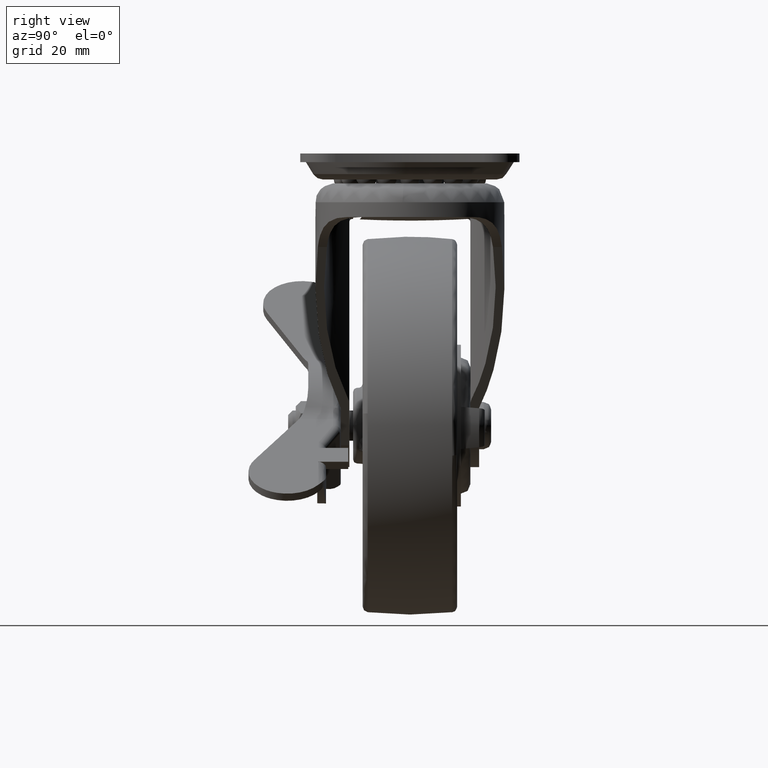
[diagram: clean part render]
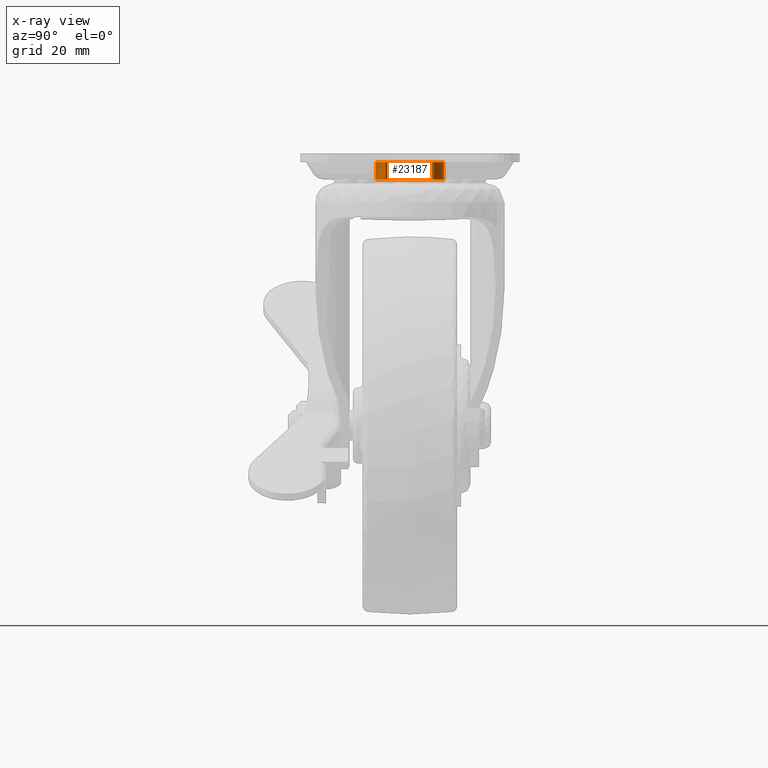
[diagram: x-ray — body ghosted, one internal face saturated and labeled with its STEP entity id]
A machine part, right view, then the same camera in x-ray: the body is ghosted and one INTERNAL B-rep face — a face not visible from any outside direction — is saturated and labeled: STEP entity #23187.
In plain terms, the highlighted face is a freeform B-spline surface patch.
Its self-contained STEP definition (entity closure, byte-faithful):
#23045=CARTESIAN_POINT('',(38.308183378698658,-6.419254042387632,69.814996974999914));
#23046=CARTESIAN_POINT('',(31.888929336311026,-12.727437421086286,69.814996974999929));
#23047=CARTESIAN_POINT('',(25.580745957612368,-6.308183378698655,69.814996974999914));
#23048=CARTESIAN_POINT('',(19.272562578913721,0.111070663688976,69.814996974999929));
#23049=CARTESIAN_POINT('',(25.691816621301349,6.419254042387632,69.814996974999914));
#23050=CARTESIAN_POINT('',(32.111070663688977,12.727437421086286,69.814996974999929));
#23051=CARTESIAN_POINT('',(38.419254042387642,6.308183378698655,69.814996974999914));
#23052=CARTESIAN_POINT('',(38.308183378698658,-6.419254042387632,64.982123025625000));
#23053=CARTESIAN_POINT('',(31.888929336311026,-12.727437421086286,64.982123025625000));
#23054=CARTESIAN_POINT('',(25.580745957612368,-6.308183378698655,64.982123025625000));
#23055=CARTESIAN_POINT('',(19.272562578913721,0.111070663688976,64.982123025625000));
#23056=CARTESIAN_POINT('',(25.691816621301349,6.419254042387632,64.982123025625000));
#23057=CARTESIAN_POINT('',(32.111070663688977,12.727437421086286,64.982123025625000));
#23058=CARTESIAN_POINT('',(38.419254042387642,6.308183378698655,64.982123025625000));
#23066=(BOUNDED_SURFACE()B_SPLINE_SURFACE(2,1,((#23045,#23052),(#23046,#23053),(#23047,#23054),(#23048,#23055),(#23049,#23056),(#23050,#23057),(#23051,#23058)),.UNSPECIFIED.,.F.,.F.,.U.)B_SPLINE_SURFACE_WITH_KNOTS((3,2,2,3),(2,2),(0.0,14.911688245431421,29.823376490862849,44.735064736294269),(0.0,4.832873949374919),.UNSPECIFIED.)GEOMETRIC_REPRESENTATION_ITEM()RATIONAL_B_SPLINE_SURFACE(((1.0,1.0),(0.707106781186548,0.707106781186548),(1.0,1.0),(0.707106781186548,0.707106781186548),(1.0,1.0),(0.707106781186548,0.707106781186548),(1.0,1.0)))REPRESENTATION_ITEM('')SURFACE());
#23067=CARTESIAN_POINT('',(38.308182696771041,-6.419253527868385,69.699997000007258));
#23068=VERTEX_POINT('',#23067);
#23069=CARTESIAN_POINT('',(31.999996619683628,-8.999999999999366,69.699996999999911));
#23070=VERTEX_POINT('',#23069);
#23071=CARTESIAN_POINT('',(38.308182696771041,-6.419253527868385,69.699997000007258));
#23072=CARTESIAN_POINT('',(37.659259906117093,-7.057548457813840,69.699997000006519));
#23073=CARTESIAN_POINT('',(36.494155707175437,-7.897201131030109,69.699997000005112));
#23074=CARTESIAN_POINT('',(34.329766888569033,-8.782652552031273,69.699997000002725));
#23075=CARTESIAN_POINT('',(32.910227051747988,-9.000484068438613,69.699997000000891));
#23076=CARTESIAN_POINT('',(31.999996619683628,-8.999999999999366,69.699996999999911));
#23077=B_SPLINE_CURVE_WITH_KNOTS('',3,(#23071,#23072,#23073,#23074,#23075,#23076),.UNSPECIFIED.,.F.,.U.,(4,1,1,4),(0.000000076488852,2.730509764147736,4.259579783437411,6.990089471055060),.UNSPECIFIED.);
#23078=EDGE_CURVE('',#23068,#23070,#23077,.T.);
#23079=ORIENTED_EDGE('',*,*,#23078,.F.);
#23080=CARTESIAN_POINT('',(38.308183892801232,-6.419254721827851,65.099997999999999));
#23081=VERTEX_POINT('',#23080);
#23082=CARTESIAN_POINT('',(38.308182696771041,-6.419253527868385,69.699997000007258));
#23083=CARTESIAN_POINT('',(38.308183892801232,-6.419254721827851,65.099997999999999));
#23084=QUASI_UNIFORM_CURVE('',1,(#23082,#23083),.UNSPECIFIED.,.F.,.U.);
#23085=EDGE_CURVE('',#23068,#23081,#23084,.T.);
#23086=ORIENTED_EDGE('',*,*,#23085,.T.);
#23087=CARTESIAN_POINT('',(32.000003380316379,-8.999999999999366,65.099997999999999));
#23088=VERTEX_POINT('',#23087);
#23089=CARTESIAN_POINT('',(32.000003380316379,-8.999999999999366,65.099997999999999));
#23090=CARTESIAN_POINT('',(32.582510885487537,-9.000062125362739,65.099997999999957));
#23091=CARTESIAN_POINT('',(33.820292671009433,-8.879439380469608,65.099998000000042));
#23092=CARTESIAN_POINT('',(36.057314374635411,-8.179399096367972,65.099997999999900));
#23093=CARTESIAN_POINT('',(37.529751589381540,-7.185606754689621,65.099998000000156));
#23094=CARTESIAN_POINT('',(38.308183892801232,-6.419254721827851,65.099997999999999));
#23095=B_SPLINE_CURVE_WITH_KNOTS('',3,(#23089,#23090,#23091,#23092,#23093,#23094),.UNSPECIFIED.,.F.,.U.,(4,1,1,4),(0.000000076481371,1.747520861966008,3.713462300180527,6.990083382762917),.UNSPECIFIED.);
#23096=EDGE_CURVE('',#23088,#23081,#23095,.T.);
#23097=ORIENTED_EDGE('',*,*,#23096,.F.);
#23098=CARTESIAN_POINT('',(23.0,0.0,65.099997999999999));
#23099=VERTEX_POINT('',#23098);
#23100=CARTESIAN_POINT('',(23.0,0.0,65.099997999999999));
#23101=CARTESIAN_POINT('',(22.999883016163260,-0.662681821294385,65.099997999999815));
#23102=CARTESIAN_POINT('',(23.142958054798129,-1.951177724447794,65.099998000000511));
#23103=CARTESIAN_POINT('',(23.769704122626731,-3.810254263977542,65.099997999999687));
#23104=CARTESIAN_POINT('',(24.855064416245011,-5.621281157998599,65.099998000000355));
#23105=CARTESIAN_POINT('',(26.404957476059622,-7.171248343468482,65.099997999999573));
#23106=CARTESIAN_POINT('',(28.287716809645779,-8.283947435675774,65.099998000000610));
#23107=CARTESIAN_POINT('',(30.159240801447130,-8.876714671114774,65.099997999999772));
#23108=CARTESIAN_POINT('',(31.410959706333070,-9.000061687989312,65.099998000000042));
#23109=CARTESIAN_POINT('',(32.000003380316379,-8.999999999999366,65.099997999999999));
#23110=B_SPLINE_CURVE_WITH_KNOTS('',3,(#23100,#23101,#23102,#23103,#23104,#23105,#23106,#23107,#23108,#23109),.UNSPECIFIED.,.F.,.U.,(4,1,1,1,1,1,1,4),(0.000000315729233,1.988030318992999,3.865666058409930,5.853765064697564,8.283494605908611,10.382045210254040,12.370117475024299,14.137257551117660),.UNSPECIFIED.);
#23111=EDGE_CURVE('',#23099,#23088,#23110,.T.);
#23112=ORIENTED_EDGE('',*,*,#23111,.F.);
#23113=CARTESIAN_POINT('',(31.999996619683621,8.999999999999364,65.099997999999999));
#23114=VERTEX_POINT('',#23113);
#23115=CARTESIAN_POINT('',(31.999996619683621,8.999999999999364,65.099997999999999));
#23116=CARTESIAN_POINT('',(31.079526852492599,9.000521088232295,65.099998000000070));
#23117=CARTESIAN_POINT('',(29.791310151833141,8.800517711799850,65.099997999999928));
#23118=CARTESIAN_POINT('',(27.967340977325911,8.096936253681378,65.099998000000056));
#23119=CARTESIAN_POINT('',(26.664798600419360,7.316200066641674,65.099997999999928));
#23120=CARTESIAN_POINT('',(25.178700416931878,5.986046159620696,65.099997999999900));
#23121=CARTESIAN_POINT('',(23.990852961504679,4.321362121064803,65.099998000000383));
#23122=CARTESIAN_POINT('',(23.177199909212220,2.172024221133518,65.099997999999417));
#23123=CARTESIAN_POINT('',(22.999821235481821,0.736314699153940,65.099998000000710));
#23124=CARTESIAN_POINT('',(23.0,0.0,65.099997999999999));
#23125=B_SPLINE_CURVE_WITH_KNOTS('',3,(#23115,#23116,#23117,#23118,#23119,#23120,#23121,#23122,#23123,#23124),.UNSPECIFIED.,.F.,.U.,(4,1,1,1,1,1,1,4),(0.000000316920714,2.761178278058207,3.865665017604124,5.853763486811054,7.289472867880938,9.829800298290625,11.928343039476021,14.137253740689340),.UNSPECIFIED.);
#23126=EDGE_CURVE('',#23114,#23099,#23125,.T.);
#23127=ORIENTED_EDGE('',*,*,#23126,.F.);
#23128=CARTESIAN_POINT('',(38.419253526816419,6.308182697841545,65.099997999999999));
#23129=VERTEX_POINT('',#23128);
#23130=CARTESIAN_POINT('',(38.419253526816419,6.308182697841545,65.099997999999999));
#23131=CARTESIAN_POINT('',(37.741226147208323,6.998929263025596,65.099998000000227));
#23132=CARTESIAN_POINT('',(36.372342585246692,8.001802523479565,65.099997999999871));
#23133=CARTESIAN_POINT('',(34.121739567883928,8.832432594410959,65.099997999999999));
#23134=CARTESIAN_POINT('',(32.707274463225453,9.000126328839968,65.099997999999914));
#23135=CARTESIAN_POINT('',(31.999996619683621,8.999999999999364,65.099997999999999));
#23136=B_SPLINE_CURVE_WITH_KNOTS('',3,(#23130,#23131,#23132,#23133,#23134,#23135),.UNSPECIFIED.,.F.,.U.,(4,1,1,4),(0.000000085438602,2.903570665403243,5.025347260079915,7.147172303205789),.UNSPECIFIED.);
#23137=EDGE_CURVE('',#23129,#23114,#23136,.T.);
#23138=ORIENTED_EDGE('',*,*,#23137,.F.);
#23139=CARTESIAN_POINT('',(38.419254722826892,6.308183891784625,69.699996999992834));
#23140=VERTEX_POINT('',#23139);
#23141=CARTESIAN_POINT('',(38.419254722826892,6.308183891784625,69.699996999992834));
#23142=CARTESIAN_POINT('',(38.419253526816419,6.308182697841545,65.099997999999999));
#23143=QUASI_UNIFORM_CURVE('',1,(#23141,#23142),.UNSPECIFIED.,.F.,.U.);
#23144=EDGE_CURVE('',#23140,#23129,#23143,.T.);
#23145=ORIENTED_EDGE('',*,*,#23144,.F.);
#23146=CARTESIAN_POINT('',(32.000003380316379,8.999999999999364,69.699996999999897));
#23147=VERTEX_POINT('',#23146);
#23148=CARTESIAN_POINT('',(32.000003380316379,8.999999999999364,69.699996999999897));
#23149=CARTESIAN_POINT('',(32.595598671331722,9.000064434821825,69.699996999999357));
#23150=CARTESIAN_POINT('',(33.861203462580093,8.873952870391777,69.699996999997751));
#23151=CARTESIAN_POINT('',(36.144173258089069,8.142396577151638,69.699996999995449));
#23152=CARTESIAN_POINT('',(37.637168930328272,7.105596612240127,69.699996999993516));
#23153=CARTESIAN_POINT('',(38.419254722826892,6.308183891784625,69.699996999992834));
#23154=B_SPLINE_CURVE_WITH_KNOTS('',3,(#23148,#23149,#23150,#23151,#23152,#23153),.UNSPECIFIED.,.F.,.U.,(4,1,1,4),(0.000000085440222,1.786791572106089,3.796911171319368,7.147166200157431),.UNSPECIFIED.);
#23155=EDGE_CURVE('',#23147,#23140,#23154,.T.);
#23156=ORIENTED_EDGE('',*,*,#23155,.F.);
#23157=CARTESIAN_POINT('',(23.0,0.0,69.699996999999897));
#23158=VERTEX_POINT('',#23157);
#23159=CARTESIAN_POINT('',(23.0,0.0,69.699996999999897));
#23160=CARTESIAN_POINT('',(22.999536395678650,0.920440331793028,69.699996999999854));
#23161=CARTESIAN_POINT('',(23.273460520265409,2.687337461619942,69.699996999999954));
#23162=CARTESIAN_POINT('',(24.239609550012499,4.698278762477142,69.699997000000224));
#23163=CARTESIAN_POINT('',(25.420859054653089,6.211457455714395,69.699996999999414));
#23164=CARTESIAN_POINT('',(26.661848363822731,7.322534736783884,69.699997000000010));
#23165=CARTESIAN_POINT('',(28.196003383785261,8.216638813059291,69.699996999999996));
#23166=CARTESIAN_POINT('',(29.975239773158240,8.840937597065249,69.699996999999840));
#23167=CARTESIAN_POINT('',(31.263685088643712,9.000192879697822,69.699996999999954));
#23168=CARTESIAN_POINT('',(32.000003380316379,8.999999999999364,69.699996999999897));
#23169=B_SPLINE_CURVE_WITH_KNOTS('',3,(#23159,#23160,#23161,#23162,#23163,#23164,#23165,#23166,#23167,#23168),.UNSPECIFIED.,.F.,.U.,(4,1,1,1,1,1,1,4),(0.000000315723581,2.761179021704267,5.301492867362857,6.626915107525404,8.504383566540133,10.271592706346810,11.928346256130441,14.137257551117660),.UNSPECIFIED.);
#23170=EDGE_CURVE('',#23158,#23147,#23169,.T.);
#23171=ORIENTED_EDGE('',*,*,#23170,.F.);
#23172=CARTESIAN_POINT('',(31.999996619683628,-8.999999999999366,69.699996999999911));
#23173=CARTESIAN_POINT('',(31.079571043533001,-9.000450057664367,69.699997000000053));
#23174=CARTESIAN_POINT('',(29.459908068219079,-8.749289638016233,69.699996999999570));
#23175=CARTESIAN_POINT('',(27.601337843194369,-7.911592047437726,69.699997000000209));
#23176=CARTESIAN_POINT('',(26.146995500999260,-6.900631988646439,69.699996999999684));
#23177=CARTESIAN_POINT('',(24.968385469764151,-5.722037170677284,69.699997000000209));
#23178=CARTESIAN_POINT('',(23.899145184458739,-4.078573816666967,69.699996999999655));
#23179=CARTESIAN_POINT('',(23.177171280779991,-2.172046867165924,69.699996999999755));
#23180=CARTESIAN_POINT('',(22.999814426699320,-0.736314758294261,69.699996999999868));
#23181=CARTESIAN_POINT('',(23.0,0.0,69.699996999999897));
#23182=B_SPLINE_CURVE_WITH_KNOTS('',3,(#23172,#23173,#23174,#23175,#23176,#23177,#23178,#23179,#23180,#23181),.UNSPECIFIED.,.F.,.U.,(4,1,1,1,1,1,1,4),(0.000000316918609,2.761178278056708,4.859717958545648,6.074640952382723,8.062615773704646,9.829800298290561,11.928343039476040,14.137253740689340),.UNSPECIFIED.);
#23183=EDGE_CURVE('',#23070,#23158,#23182,.T.);
#23184=ORIENTED_EDGE('',*,*,#23183,.F.);
#23185=EDGE_LOOP('',(#23079,#23086,#23097,#23112,#23127,#23138,#23145,#23156,#23171,#23184));
#23186=FACE_OUTER_BOUND('',#23185,.T.);
#23187=ADVANCED_FACE('',(#23186),#23066,.F.);